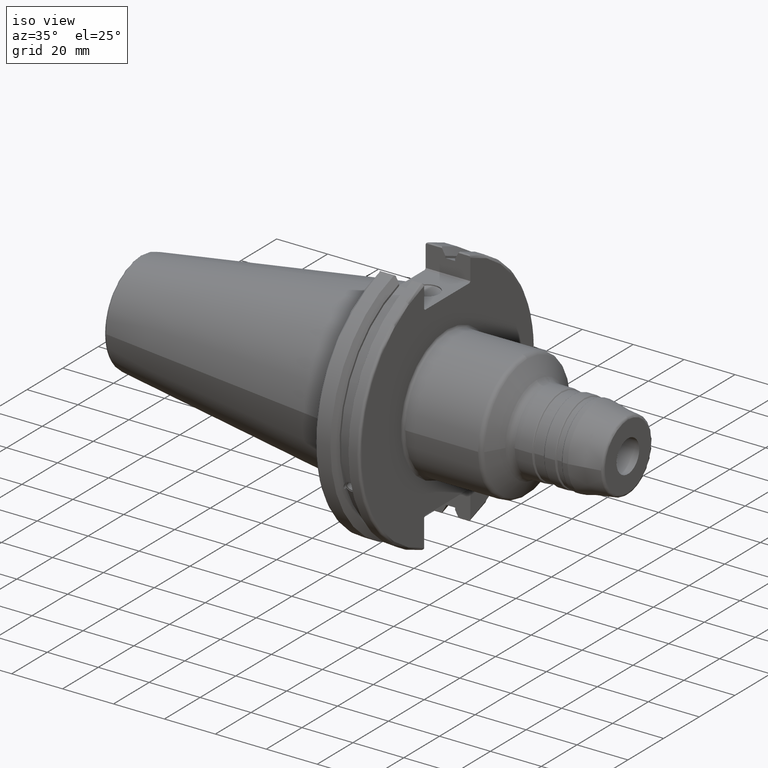
[diagram: clean part render]
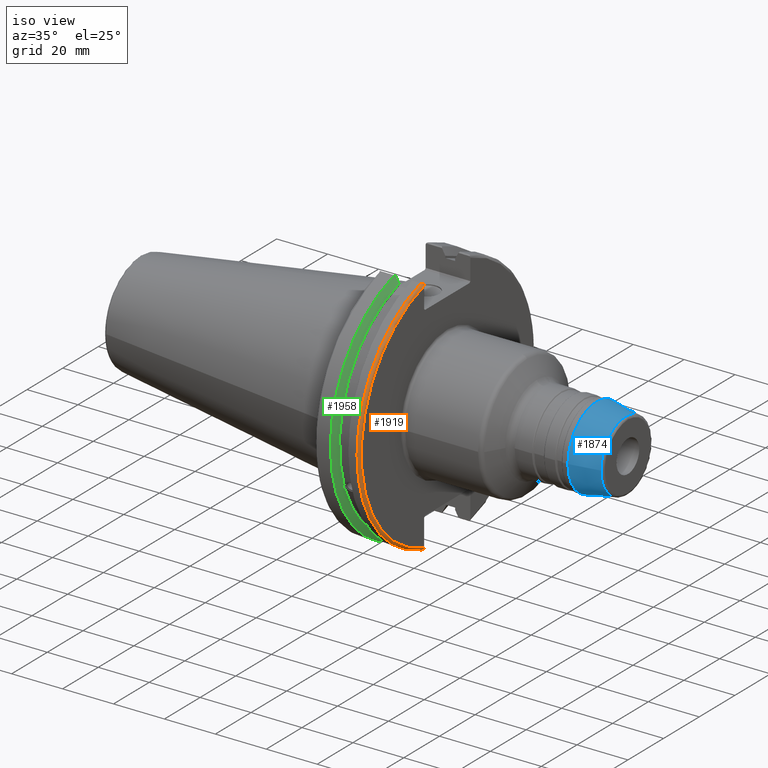
[diagram: same view with three faces highlighted in distinct colors, each labeled with its STEP entity id]
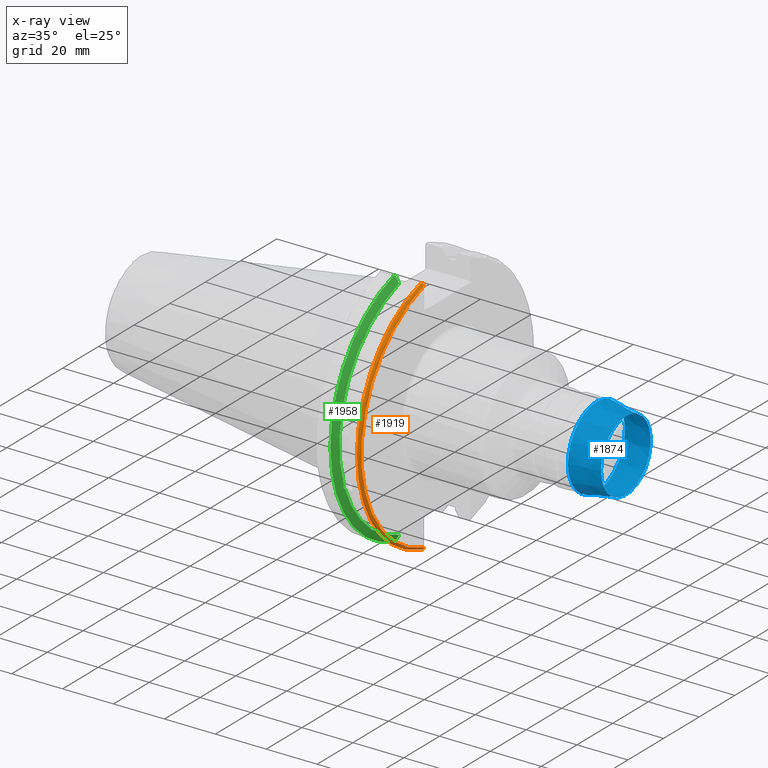
[diagram: x-ray of the same camera — body ghosted, the three highlighted faces saturated]
A machine part, iso view with three faces highlighted in distinct colors.
The next image is the same camera in x-ray (body ghosted, the three faces saturated) — at least one of them is partly hidden behind the body in this view.
Their STEP definitions:

[orange] entity #1919 — the highlighted toroidal blend (fillet) surface has major radius 48.2125 mm and minor (blend) radius 1 mm.
#64=B_SPLINE_CURVE_WITH_KNOTS('',3,(#3627,#3628,#3629,#3630,#3631,#3632),
 .UNSPECIFIED.,.F.,.F.,(4,2,4),(0.097707143645253,0.112358403262293,0.150882178076498),
 .UNSPECIFIED.);
#65=B_SPLINE_CURVE_WITH_KNOTS('',3,(#3634,#3635,#3636,#3637,#3638,#3639),
 .UNSPECIFIED.,.F.,.F.,(4,2,4),(0.452859340315923,0.491741138916218,0.506051994111224),
 .UNSPECIFIED.);
#66=B_SPLINE_CURVE_WITH_KNOTS('',3,(#3641,#3642,#3643,#3644,#3645,#3646,
#3647,#3648),.UNSPECIFIED.,.F.,.F.,(4,2,2,4),(-0.104075769062722,-0.0730268503455477,
-0.0343639873656263,0.),.UNSPECIFIED.);
#67=B_SPLINE_CURVE_WITH_KNOTS('',3,(#3651,#3652,#3653,#3654,#3655,#3656,
#3657,#3658),.UNSPECIFIED.,.F.,.F.,(4,2,2,4),(0.,0.0364336453281818,0.0778720357014993,
0.104197480645881),.UNSPECIFIED.);
#453=FACE_OUTER_BOUND('',#573,.T.);
#573=EDGE_LOOP('',(#1603,#1604,#1605,#1606,#1607,#1608));
#683=CIRCLE('',#2070,48.2125);
#725=CIRCLE('',#2154,49.2125);
#808=VERTEX_POINT('',#2968);
#809=VERTEX_POINT('',#2970);
#901=VERTEX_POINT('',#3626);
#902=VERTEX_POINT('',#3633);
#903=VERTEX_POINT('',#3640);
#904=VERTEX_POINT('',#3649);
#1027=EDGE_CURVE('',#809,#808,#683,.T.);
#1154=EDGE_CURVE('',#901,#809,#64,.T.);
#1155=EDGE_CURVE('',#808,#902,#65,.T.);
#1156=EDGE_CURVE('',#902,#903,#66,.T.);
#1157=EDGE_CURVE('',#903,#904,#725,.T.);
#1158=EDGE_CURVE('',#904,#901,#67,.T.);
#1603=ORIENTED_EDGE('',*,*,#1154,.T.);
#1604=ORIENTED_EDGE('',*,*,#1027,.T.);
#1605=ORIENTED_EDGE('',*,*,#1155,.T.);
#1606=ORIENTED_EDGE('',*,*,#1156,.T.);
#1607=ORIENTED_EDGE('',*,*,#1157,.T.);
#1608=ORIENTED_EDGE('',*,*,#1158,.T.);
#1851=TOROIDAL_SURFACE('',#2153,48.2125,1.);
#1919=ADVANCED_FACE('',(#453),#1851,.T.);
#2070=AXIS2_PLACEMENT_3D('',#2971,#2412,#2413);
#2153=AXIS2_PLACEMENT_3D('',#3625,#2622,#2623);
#2154=AXIS2_PLACEMENT_3D('',#3650,#2624,#2625);
#2412=DIRECTION('center_axis',(-1.,0.,0.));
#2413=DIRECTION('ref_axis',(0.,-1.,1.60812264967664E-16));
#2622=DIRECTION('center_axis',(1.,0.,0.));
#2623=DIRECTION('ref_axis',(0.,0.,-1.));
#2624=DIRECTION('center_axis',(1.,0.,0.));
#2625=DIRECTION('ref_axis',(0.,-1.,1.60812264967664E-16));
#2968=CARTESIAN_POINT('',(19.05,-12.95,46.4407434937254));
#2970=CARTESIAN_POINT('',(19.05,-12.95,-46.4407434937254));
#2971=CARTESIAN_POINT('Origin',(19.05,0.,0.));
#3625=CARTESIAN_POINT('Origin',(18.05,0.,0.));
#3626=CARTESIAN_POINT('',(18.9055020570566,-12.95,-46.9780755322917));
#3627=CARTESIAN_POINT('Ctrl Pts',(18.9055020570566,-12.95,-46.9780755322917));
#3628=CARTESIAN_POINT('Ctrl Pts',(18.9322353702005,-12.95,-46.9322596399785));
#3629=CARTESIAN_POINT('Ctrl Pts',(18.9549831813775,-12.95,-46.8849952622217));
#3630=CARTESIAN_POINT('Ctrl Pts',(19.0209992543299,-12.95,-46.7204975987179));
#3631=CARTESIAN_POINT('Ctrl Pts',(19.05,-12.95,-46.5691560764394));
#3632=CARTESIAN_POINT('Ctrl Pts',(19.05,-12.95,-46.4407434937254));
#3633=CARTESIAN_POINT('',(18.9055020570566,-12.95,46.9780755322918));
#3634=CARTESIAN_POINT('Ctrl Pts',(19.05,-12.95,46.4407434937254));
#3635=CARTESIAN_POINT('Ctrl Pts',(19.05,-12.95,46.5703494890597));
#3636=CARTESIAN_POINT('Ctrl Pts',(19.0204646992875,-12.95,46.7230464903732));
#3637=CARTESIAN_POINT('Ctrl Pts',(18.9538432708766,-12.95,46.887363294568));
#3638=CARTESIAN_POINT('Ctrl Pts',(18.9315844351616,-12.95,46.9333752207329));
#3639=CARTESIAN_POINT('Ctrl Pts',(18.9055020570566,-12.95,46.9780755322918));
#3640=CARTESIAN_POINT('',(18.05,-13.4317035994433,47.3440544806494));
#3641=CARTESIAN_POINT('Ctrl Pts',(18.9055020570566,-12.95,46.9780755322918));
#3642=CARTESIAN_POINT('Ctrl Pts',(18.8571496772125,-13.0300321736484,47.0388807469102));
#3643=CARTESIAN_POINT('Ctrl Pts',(18.792640282015,-13.1083611826073,47.0983919657547));
#3644=CARTESIAN_POINT('Ctrl Pts',(18.6399248789208,-13.2478194810695,47.2043467509586));
#3645=CARTESIAN_POINT('Ctrl Pts',(18.5186188350904,-13.3242014686233,47.2623787015413));
#3646=CARTESIAN_POINT('Ctrl Pts',(18.2983889675417,-13.4067722493645,47.3251126473446));
#3647=CARTESIAN_POINT('Ctrl Pts',(18.1645466245521,-13.4317035994433,47.3440544806494));
#3648=CARTESIAN_POINT('Ctrl Pts',(18.05,-13.4317035994433,47.3440544806494));
#3649=CARTESIAN_POINT('',(18.05,-13.4317035994433,-47.3440544806494));
#3650=CARTESIAN_POINT('Origin',(18.05,0.,0.));
#3651=CARTESIAN_POINT('Ctrl Pts',(18.05,-13.4317035994433,-47.3440544806494));
#3652=CARTESIAN_POINT('Ctrl Pts',(18.1714454844273,-13.4317035994433,-47.3440544806494));
#3653=CARTESIAN_POINT('Ctrl Pts',(18.3128758164404,-13.4037095171132,-47.3227857070233));
#3654=CARTESIAN_POINT('Ctrl Pts',(18.54495745946,-13.3111366376071,-47.2524525703658));
#3655=CARTESIAN_POINT('Ctrl Pts',(18.6710431007969,-13.2254637570201,-47.1873617743322));
#3656=CARTESIAN_POINT('Ctrl Pts',(18.811782280389,-13.0847856162862,-47.0804802022157));
#3657=CARTESIAN_POINT('Ctrl Pts',(18.8641312352177,-13.0184763978125,-47.0301011349397));
#3658=CARTESIAN_POINT('Ctrl Pts',(18.9055020570566,-12.95,-46.9780755322917));

[blue] entity #1874 — the highlighted conical surface has half-angle 10 deg.
#135=CONICAL_SURFACE('',#2052,14.9,0.174532925199433);
#159=LINE('',#2933,#263);
#263=VECTOR('',#2373,14.9);
#408=FACE_OUTER_BOUND('',#516,.T.);
#516=EDGE_LOOP('',(#1355,#1356,#1357,#1358,#1359,#1360));
#668=CIRCLE('',#2049,15.9848077530122);
#669=CIRCLE('',#2050,15.9848077530122);
#671=CIRCLE('',#2053,13.9457081218349);
#672=CIRCLE('',#2054,13.9457081218349);
#791=VERTEX_POINT('',#2924);
#792=VERTEX_POINT('',#2925);
#793=VERTEX_POINT('',#2930);
#794=VERTEX_POINT('',#2931);
#1005=EDGE_CURVE('',#791,#792,#668,.T.);
#1006=EDGE_CURVE('',#792,#791,#669,.T.);
#1008=EDGE_CURVE('',#793,#794,#671,.T.);
#1009=EDGE_CURVE('',#793,#792,#159,.T.);
#1010=EDGE_CURVE('',#794,#793,#672,.T.);
#1355=ORIENTED_EDGE('',*,*,#1008,.F.);
#1356=ORIENTED_EDGE('',*,*,#1009,.T.);
#1357=ORIENTED_EDGE('',*,*,#1005,.F.);
#1358=ORIENTED_EDGE('',*,*,#1006,.F.);
#1359=ORIENTED_EDGE('',*,*,#1009,.F.);
#1360=ORIENTED_EDGE('',*,*,#1010,.F.);
#1874=ADVANCED_FACE('',(#408),#135,.T.);
#2049=AXIS2_PLACEMENT_3D('',#2926,#2363,#2364);
#2050=AXIS2_PLACEMENT_3D('',#2927,#2365,#2366);
#2052=AXIS2_PLACEMENT_3D('',#2929,#2369,#2370);
#2053=AXIS2_PLACEMENT_3D('',#2932,#2371,#2372);
#2054=AXIS2_PLACEMENT_3D('',#2934,#2374,#2375);
#2363=DIRECTION('center_axis',(-1.,0.,0.));
#2364=DIRECTION('ref_axis',(0.,-1.,3.06161699786838E-17));
#2365=DIRECTION('center_axis',(-1.,0.,0.));
#2366=DIRECTION('ref_axis',(0.,-1.,3.06161699786838E-17));
#2369=DIRECTION('center_axis',(-1.,0.,0.));
#2370=DIRECTION('ref_axis',(0.,1.,0.));
#2371=DIRECTION('center_axis',(1.,0.,0.));
#2372=DIRECTION('ref_axis',(0.,-1.,3.06161699786839E-17));
#2373=DIRECTION('',(-0.984807753012208,-0.17364817766693,-2.12657684957577E-17));
#2374=DIRECTION('center_axis',(1.,0.,0.));
#2375=DIRECTION('ref_axis',(0.,-1.,3.06161699786839E-17));
#2924=CARTESIAN_POINT('',(77.6093395109821,-1.95757436497122E-15,15.9848077530122));
#2925=CARTESIAN_POINT('',(77.6093395109821,-15.9848077530122,-1.95757436497122E-15));
#2926=CARTESIAN_POINT('Origin',(77.6093395109821,0.,-2.44696795621402E-15));
#2927=CARTESIAN_POINT('Origin',(77.6093395109821,0.,-2.44696795621402E-15));
#2929=CARTESIAN_POINT('Origin',(83.7615899984205,0.,0.));
#2930=CARTESIAN_POINT('',(89.1736481776669,-13.9457081218349,-1.70785668132484E-15));
#2931=CARTESIAN_POINT('',(89.1736481776669,-1.70785668132484E-15,13.9457081218349));
#2932=CARTESIAN_POINT('Origin',(89.1736481776669,0.,-2.13482085165605E-15));
#2933=CARTESIAN_POINT('',(83.7615899984205,-14.9,-1.82472373072956E-15));
#2934=CARTESIAN_POINT('Origin',(89.1736481776669,0.,-2.13482085165605E-15));

[green] entity #1958 — the highlighted conical surface has half-angle 60 deg.
#25=(
BOUNDED_CURVE()
B_SPLINE_CURVE(2,(#3674,#3675,#3676),.UNSPECIFIED.,.F.,.F.)
B_SPLINE_CURVE_WITH_KNOTS((3,3),(0.,0.275823910672366),.UNSPECIFIED.)
CURVE()
GEOMETRIC_REPRESENTATION_ITEM()
RATIONAL_B_SPLINE_CURVE((1.,1.00038235575046,1.00012873636977))
REPRESENTATION_ITEM('')
);
#26=(
BOUNDED_CURVE()
B_SPLINE_CURVE(2,(#3686,#3687,#3688),.UNSPECIFIED.,.F.,.F.)
B_SPLINE_CURVE_WITH_KNOTS((3,3),(0.0558332664541804,0.331657177124506),
 .UNSPECIFIED.)
CURVE()
GEOMETRIC_REPRESENTATION_ITEM()
RATIONAL_B_SPLINE_CURVE((1.00012873636289,1.00038235573002,1.))
REPRESENTATION_ITEM('')
);
#27=(
BOUNDED_CURVE()
B_SPLINE_CURVE(2,(#3725,#3726,#3727),.UNSPECIFIED.,.F.,.F.)
B_SPLINE_CURVE_WITH_KNOTS((3,3),(0.,0.0648240472896781),.UNSPECIFIED.)
CURVE()
GEOMETRIC_REPRESENTATION_ITEM()
RATIONAL_B_SPLINE_CURVE((1.,1.00011477674883,1.00019140646027))
REPRESENTATION_ITEM('')
);
#28=(
BOUNDED_CURVE()
B_SPLINE_CURVE(2,(#3733,#3734,#3735),.UNSPECIFIED.,.F.,.F.)
B_SPLINE_CURVE_WITH_KNOTS((3,3),(0.32526094493246,0.390084992222203),
 .UNSPECIFIED.)
CURVE()
GEOMETRIC_REPRESENTATION_ITEM()
RATIONAL_B_SPLINE_CURVE((1.0001914064594,1.00011477674832,1.))
REPRESENTATION_ITEM('')
);
#46=B_SPLINE_CURVE_WITH_KNOTS('',3,(#3235,#3236,#3237,#3238,#3239,#3240,
#3241,#3242,#3243,#3244,#3245,#3246,#3247,#3248),.UNSPECIFIED.,.F.,.F.,
(4,2,2,2,2,2,4),(0.426712868358728,0.441644498666906,0.48031331322313,0.518982127779354,
0.557650942335577,0.596319756891801,0.611251387199982),.UNSPECIFIED.);
#149=CONICAL_SURFACE('',#2218,47.8172386482472,1.0471975511966);
#492=FACE_OUTER_BOUND('',#617,.T.);
#617=EDGE_LOOP('',(#1811,#1812,#1813,#1814,#1815,#1816,#1817,#1818));
#709=CIRCLE('',#2119,46.4219772964944);
#728=CIRCLE('',#2162,49.2125);
#751=CIRCLE('',#2219,46.4219772964944);
#841=VERTEX_POINT('',#3232);
#842=VERTEX_POINT('',#3234);
#859=VERTEX_POINT('',#3326);
#908=VERTEX_POINT('',#3671);
#909=VERTEX_POINT('',#3673);
#912=VERTEX_POINT('',#3685);
#918=VERTEX_POINT('',#3723);
#919=VERTEX_POINT('',#3729);
#1071=EDGE_CURVE('',#842,#841,#46,.T.);
#1095=EDGE_CURVE('',#842,#859,#709,.T.);
#1163=EDGE_CURVE('',#909,#908,#25,.T.);
#1169=EDGE_CURVE('',#912,#859,#26,.T.);
#1179=EDGE_CURVE('',#918,#908,#27,.T.);
#1181=EDGE_CURVE('',#918,#919,#728,.T.);
#1182=EDGE_CURVE('',#912,#919,#28,.T.);
#1242=EDGE_CURVE('',#909,#841,#751,.T.);
#1811=ORIENTED_EDGE('',*,*,#1071,.T.);
#1812=ORIENTED_EDGE('',*,*,#1242,.F.);
#1813=ORIENTED_EDGE('',*,*,#1163,.T.);
#1814=ORIENTED_EDGE('',*,*,#1179,.F.);
#1815=ORIENTED_EDGE('',*,*,#1181,.T.);
#1816=ORIENTED_EDGE('',*,*,#1182,.F.);
#1817=ORIENTED_EDGE('',*,*,#1169,.T.);
#1818=ORIENTED_EDGE('',*,*,#1095,.F.);
#1958=ADVANCED_FACE('',(#492),#149,.T.);
#2119=AXIS2_PLACEMENT_3D('',#3327,#2533,#2534);
#2162=AXIS2_PLACEMENT_3D('',#3731,#2653,#2654);
#2218=AXIS2_PLACEMENT_3D('',#3885,#2795,#2796);
#2219=AXIS2_PLACEMENT_3D('',#3886,#2797,#2798);
#2533=DIRECTION('center_axis',(1.,0.,0.));
#2534=DIRECTION('ref_axis',(0.,0.,-1.));
#2653=DIRECTION('center_axis',(1.,0.,0.));
#2654=DIRECTION('ref_axis',(0.,0.,-1.));
#2795=DIRECTION('center_axis',(-1.,0.,0.));
#2796=DIRECTION('ref_axis',(0.,-1.,-1.22464679914735E-16));
#2797=DIRECTION('center_axis',(1.,0.,0.));
#2798=DIRECTION('ref_axis',(0.,0.,-1.));
#3232=CARTESIAN_POINT('',(9.2191,-43.9096390749305,-15.0646464421033));
#3234=CARTESIAN_POINT('',(9.21910000000001,-43.3201030900029,-16.6843832486479));
#3235=CARTESIAN_POINT('Ctrl Pts',(9.21909999999997,-43.3201030900029,-16.6843832486479));
#3236=CARTESIAN_POINT('Ctrl Pts',(9.2021184390339,-43.3613106941341,-16.6592273018006));
#3237=CARTESIAN_POINT('Ctrl Pts',(9.18608675403322,-43.4012416983557,-16.6326763251437));
#3238=CARTESIAN_POINT('Ctrl Pts',(9.13238673845037,-43.5391037343221,-16.5325130832406));
#3239=CARTESIAN_POINT('Ctrl Pts',(9.09621610663555,-43.6406982153491,-16.441180795372));
#3240=CARTESIAN_POINT('Ctrl Pts',(9.04690868251975,-43.8110833825827,-16.2291323464527));
#3241=CARTESIAN_POINT('Ctrl Pts',(9.0341,-43.8794096049168,-16.10796730316));
#3242=CARTESIAN_POINT('Ctrl Pts',(9.03409999999999,-43.9675796948952,-15.8657219718732));
#3243=CARTESIAN_POINT('Ctrl Pts',(9.04690868251975,-43.9931221605126,-15.7289849146254));
#3244=CARTESIAN_POINT('Ctrl Pts',(9.09621610663555,-43.9989016655819,-15.4570249042867));
#3245=CARTESIAN_POINT('Ctrl Pts',(9.13238673845037,-43.9797830409458,-15.3217566390708));
#3246=CARTESIAN_POINT('Ctrl Pts',(9.18608675403322,-43.9385582852181,-15.1564111356409));
#3247=CARTESIAN_POINT('Ctrl Pts',(9.2021184390339,-43.9250360001461,-15.1104047527575));
#3248=CARTESIAN_POINT('Ctrl Pts',(9.21909999999998,-43.9096390749305,-15.0646464421033));
#3326=CARTESIAN_POINT('',(9.2191,-12.95,-44.5791147973604));
#3327=CARTESIAN_POINT('Origin',(9.2191,0.,0.));
#3671=CARTESIAN_POINT('',(7.88638960562425,-12.95,46.9780755322918));
#3673=CARTESIAN_POINT('',(9.2191,-12.95,44.5791147973604));
#3674=CARTESIAN_POINT('Ctrl Pts',(9.2191,-12.95,44.5791147973604));
#3675=CARTESIAN_POINT('Ctrl Pts',(8.57020449052102,-12.95,45.7494966802823));
#3676=CARTESIAN_POINT('Ctrl Pts',(7.88638960562425,-12.95,46.9780755322918));
#3685=CARTESIAN_POINT('',(7.88638960562426,-12.95,-46.9780755322917));
#3686=CARTESIAN_POINT('Ctrl Pts',(7.88638960562426,-12.95,-46.9780755322917));
#3687=CARTESIAN_POINT('Ctrl Pts',(8.57020449050979,-12.95,-45.7494966803025));
#3688=CARTESIAN_POINT('Ctrl Pts',(9.2191,-12.95,-44.5791147973604));
#3723=CARTESIAN_POINT('',(7.60799096595127,-13.4317035994433,47.3440544806494));
#3725=CARTESIAN_POINT('Ctrl Pts',(7.60799096595127,-13.4317035994433,47.3440544806494));
#3726=CARTESIAN_POINT('Ctrl Pts',(7.7482689666383,-13.1896660169964,47.1601640966263));
#3727=CARTESIAN_POINT('Ctrl Pts',(7.88638960562425,-12.95,46.9780755322918));
#3729=CARTESIAN_POINT('',(7.60799096595127,-13.4317035994433,-47.3440544806494));
#3731=CARTESIAN_POINT('Origin',(7.60799096595127,0.,0.));
#3733=CARTESIAN_POINT('Ctrl Pts',(7.88638960562426,-12.95,-46.9780755322917));
#3734=CARTESIAN_POINT('Ctrl Pts',(7.74826896663821,-13.1896660169966,-47.1601640966264));
#3735=CARTESIAN_POINT('Ctrl Pts',(7.60799096595127,-13.4317035994433,-47.3440544806494));
#3885=CARTESIAN_POINT('Origin',(8.41354548297563,0.,0.));
#3886=CARTESIAN_POINT('Origin',(9.2191,0.,0.));